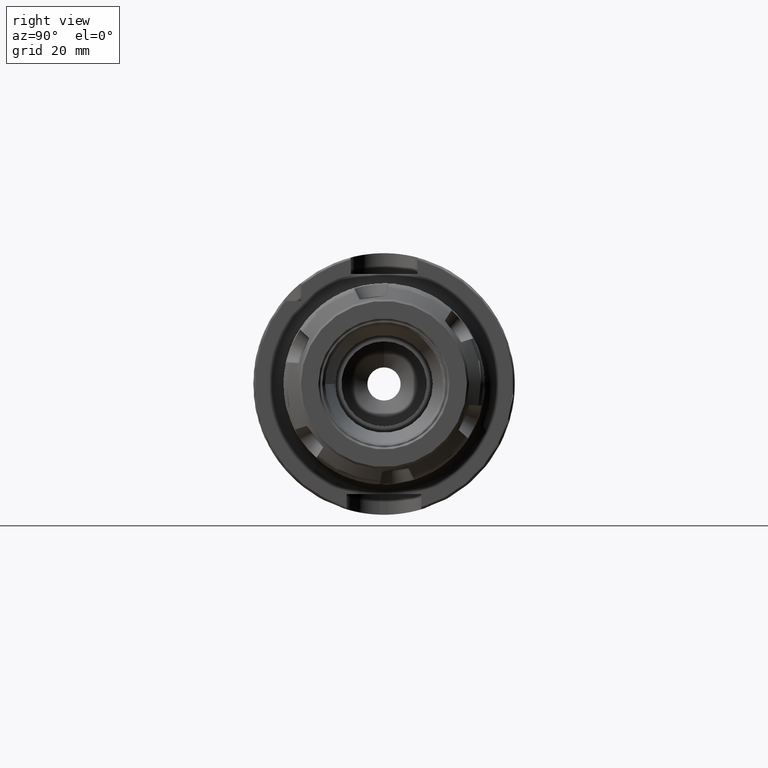
[diagram: clean part render]
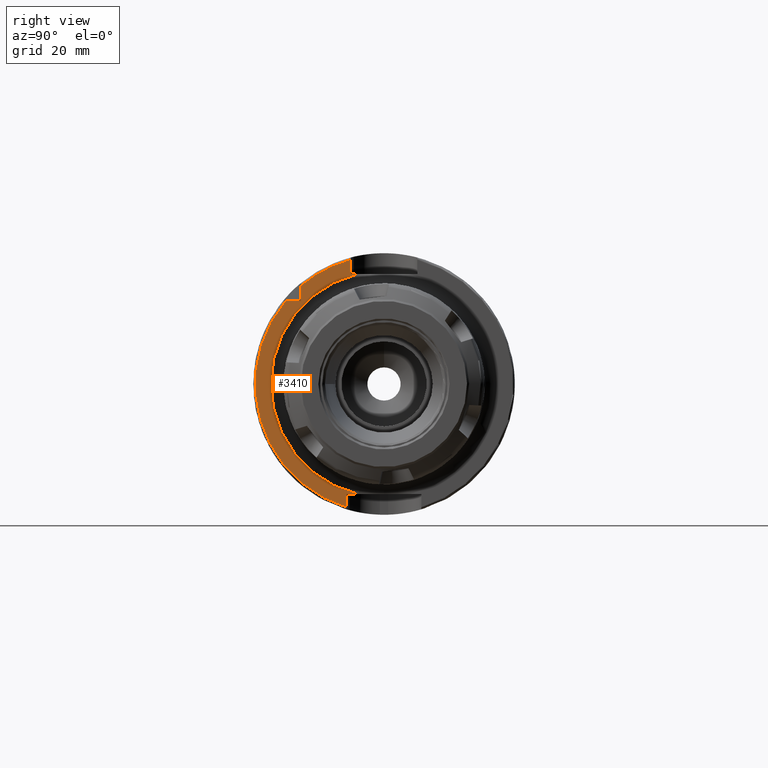
[diagram: same view with one face highlighted and labeled with its STEP entity id]
A machine part, right view. The second image highlights one B-rep face of the part: STEP entity #3410.
In plain terms, the highlighted planar face has unit normal (1, 0, 0).
Its self-contained STEP definition (entity closure, byte-faithful):
#191=PLANE('',#3709);
#361=FACE_OUTER_BOUND('',#564,.T.);
#564=EDGE_LOOP('',(#2333,#2334,#2335,#2336,#2337,#2338,#2339,#2340,#2341));
#775=LINE('',#5243,#961);
#776=LINE('',#5245,#962);
#777=LINE('',#5249,#963);
#778=LINE('',#5251,#964);
#779=LINE('',#5255,#965);
#780=LINE('',#5256,#966);
#961=VECTOR('',#4195,10.);
#962=VECTOR('',#4196,10.);
#963=VECTOR('',#4199,10.);
#964=VECTOR('',#4200,10.);
#965=VECTOR('',#4203,10.);
#966=VECTOR('',#4204,10.);
#1169=CIRCLE('',#3708,27.25);
#1170=CIRCLE('',#3710,31.);
#1171=CIRCLE('',#3711,31.);
#1382=VERTEX_POINT('',#5222);
#1383=VERTEX_POINT('',#5233);
#1384=VERTEX_POINT('',#5242);
#1385=VERTEX_POINT('',#5244);
#1386=VERTEX_POINT('',#5246);
#1387=VERTEX_POINT('',#5248);
#1388=VERTEX_POINT('',#5250);
#1389=VERTEX_POINT('',#5252);
#1390=VERTEX_POINT('',#5254);
#1752=EDGE_CURVE('',#1382,#1383,#1169,.T.);
#1754=EDGE_CURVE('',#1382,#1384,#775,.T.);
#1755=EDGE_CURVE('',#1384,#1385,#776,.T.);
#1756=EDGE_CURVE('',#1385,#1386,#1170,.T.);
#1757=EDGE_CURVE('',#1386,#1387,#777,.T.);
#1758=EDGE_CURVE('',#1387,#1388,#778,.T.);
#1759=EDGE_CURVE('',#1388,#1389,#1171,.T.);
#1760=EDGE_CURVE('',#1389,#1390,#779,.T.);
#1761=EDGE_CURVE('',#1390,#1383,#780,.T.);
#2333=ORIENTED_EDGE('',*,*,#1752,.F.);
#2334=ORIENTED_EDGE('',*,*,#1754,.T.);
#2335=ORIENTED_EDGE('',*,*,#1755,.T.);
#2336=ORIENTED_EDGE('',*,*,#1756,.T.);
#2337=ORIENTED_EDGE('',*,*,#1757,.T.);
#2338=ORIENTED_EDGE('',*,*,#1758,.T.);
#2339=ORIENTED_EDGE('',*,*,#1759,.T.);
#2340=ORIENTED_EDGE('',*,*,#1760,.T.);
#2341=ORIENTED_EDGE('',*,*,#1761,.T.);
#3410=ADVANCED_FACE('',(#361),#191,.T.);
#3708=AXIS2_PLACEMENT_3D('',#5234,#4191,#4192);
#3709=AXIS2_PLACEMENT_3D('',#5241,#4193,#4194);
#3710=AXIS2_PLACEMENT_3D('',#5247,#4197,#4198);
#3711=AXIS2_PLACEMENT_3D('',#5253,#4201,#4202);
#4191=DIRECTION('center_axis',(1.,0.,0.));
#4192=DIRECTION('ref_axis',(0.,-1.,-1.22464679914735E-16));
#4193=DIRECTION('center_axis',(1.,0.,0.));
#4194=DIRECTION('ref_axis',(0.,0.,-1.));
#4195=DIRECTION('',(0.,-1.,0.));
#4196=DIRECTION('',(0.,0.,1.));
#4197=DIRECTION('center_axis',(1.,0.,0.));
#4198=DIRECTION('ref_axis',(0.,0.,-1.));
#4199=DIRECTION('',(0.,0.,-1.));
#4200=DIRECTION('',(0.,-1.,0.));
#4201=DIRECTION('center_axis',(1.,0.,0.));
#4202=DIRECTION('ref_axis',(0.,0.,-1.));
#4203=DIRECTION('',(0.,0.,1.));
#4204=DIRECTION('',(0.,1.,0.));
#5222=CARTESIAN_POINT('',(26.,-6.34921254960016,26.5));
#5233=CARTESIAN_POINT('',(26.,-6.34921254960016,-26.5));
#5234=CARTESIAN_POINT('Origin',(26.,0.,0.));
#5241=CARTESIAN_POINT('Origin',(26.,0.,0.));
#5242=CARTESIAN_POINT('',(26.,-8.,26.5));
#5243=CARTESIAN_POINT('',(26.,5.55111512312578E-16,26.5));
#5244=CARTESIAN_POINT('',(26.,-8.,29.9499582637439));
#5245=CARTESIAN_POINT('',(26.,-8.,13.25));
#5246=CARTESIAN_POINT('',(26.,-20.,23.685438564654));
#5247=CARTESIAN_POINT('Origin',(26.,0.,0.));
#5248=CARTESIAN_POINT('',(26.,-20.,20.));
#5249=CARTESIAN_POINT('',(26.,-20.,10.));
#5250=CARTESIAN_POINT('',(26.,-23.685438564654,20.));
#5251=CARTESIAN_POINT('',(26.,-12.,20.));
#5252=CARTESIAN_POINT('',(26.,-9.,-29.6647939483827));
#5253=CARTESIAN_POINT('Origin',(26.,0.,0.));
#5254=CARTESIAN_POINT('',(26.,-9.,-26.5));
#5255=CARTESIAN_POINT('',(26.,-9.,-13.25));
#5256=CARTESIAN_POINT('',(26.,1.94289029309402E-15,-26.5));